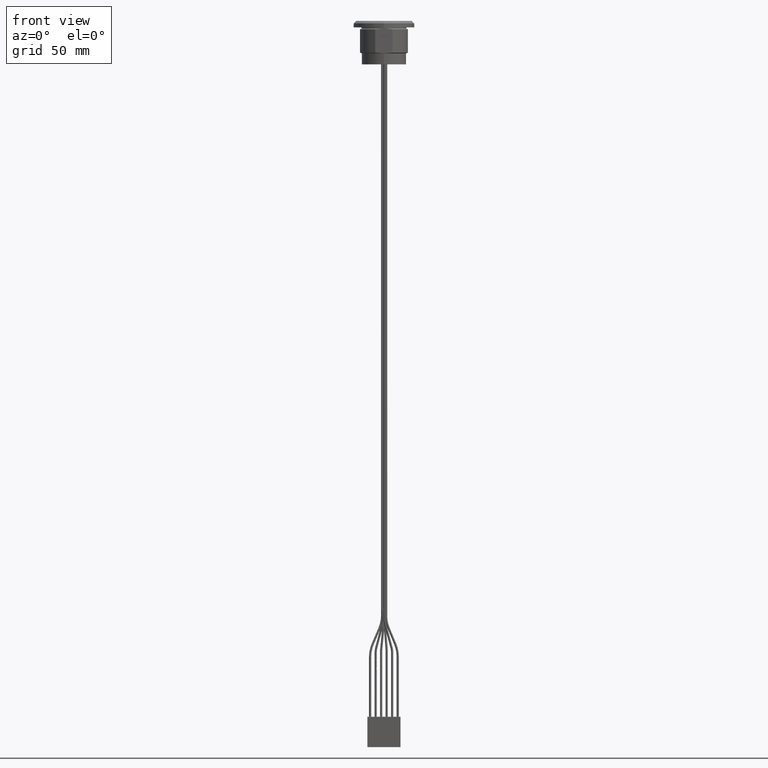
[diagram: clean part render]
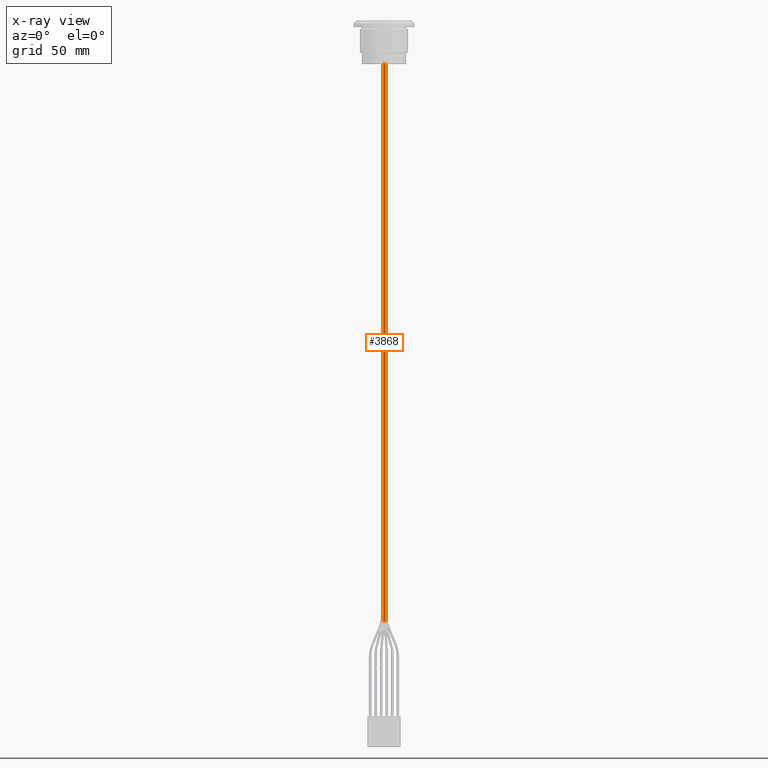
[diagram: x-ray — body ghosted, one internal face saturated and labeled with its STEP entity id]
A machine part, front view, then the same camera in x-ray: the body is ghosted and one INTERNAL B-rep face — a face not visible from any outside direction — is saturated and labeled: STEP entity #3868.
In plain terms, the highlighted cylindrical surface (bore or boss wall) has radius 0.5 mm, axis along (0, -0, -1).
Its self-contained STEP definition (entity closure, byte-faithful):
#288=FACE_OUTER_BOUND('',#505,.T.);
#505=EDGE_LOOP('',(#2818,#2819,#2820,#2821,#2822,#2823,#2824,#2825));
#718=CIRCLE('',#4087,0.5);
#719=CIRCLE('',#4088,0.5);
#757=CIRCLE('',#4145,0.5);
#758=CIRCLE('',#4146,0.5);
#879=LINE('',#6544,#1277);
#880=LINE('',#6545,#1278);
#1277=VECTOR('',#4629,0.5);
#1278=VECTOR('',#4630,10.);
#1671=VERTEX_POINT('',#5668);
#1672=VERTEX_POINT('',#5669);
#1699=VERTEX_POINT('',#6428);
#1715=VERTEX_POINT('',#6518);
#1716=VERTEX_POINT('',#6520);
#2054=EDGE_CURVE('',#1671,#1672,#718,.T.);
#2055=EDGE_CURVE('',#1672,#1671,#719,.T.);
#2127=EDGE_CURVE('',#1715,#1716,#757,.T.);
#2128=EDGE_CURVE('',#1716,#1715,#758,.T.);
#2139=EDGE_CURVE('',#1716,#1672,#879,.T.);
#2140=EDGE_CURVE('',#1671,#1699,#880,.T.);
#2818=ORIENTED_EDGE('',*,*,#2128,.F.);
#2819=ORIENTED_EDGE('',*,*,#2139,.T.);
#2820=ORIENTED_EDGE('',*,*,#2054,.F.);
#2821=ORIENTED_EDGE('',*,*,#2140,.T.);
#2822=ORIENTED_EDGE('',*,*,#2140,.F.);
#2823=ORIENTED_EDGE('',*,*,#2055,.F.);
#2824=ORIENTED_EDGE('',*,*,#2139,.F.);
#2825=ORIENTED_EDGE('',*,*,#2127,.F.);
#3800=CYLINDRICAL_SURFACE('',#4159,0.5);
#3868=ADVANCED_FACE('',(#288),#3800,.T.);
#4087=AXIS2_PLACEMENT_3D('',#5670,#4468,#4469);
#4088=AXIS2_PLACEMENT_3D('',#5671,#4470,#4471);
#4145=AXIS2_PLACEMENT_3D('',#6521,#4597,#4598);
#4146=AXIS2_PLACEMENT_3D('',#6522,#4599,#4600);
#4159=AXIS2_PLACEMENT_3D('',#6543,#4627,#4628);
#4468=DIRECTION('center_axis',(-1.47704537838551E-15,7.56610854500175E-16,
1.));
#4469=DIRECTION('ref_axis',(4.51736223297875E-15,-1.,7.56610854500181E-16));
#4470=DIRECTION('center_axis',(-1.47704537838551E-15,7.56610854500175E-16,
1.));
#4471=DIRECTION('ref_axis',(4.51736223297875E-15,-1.,7.56610854500181E-16));
#4597=DIRECTION('center_axis',(1.47704537838551E-15,-7.56610854500175E-16,
-1.));
#4598=DIRECTION('ref_axis',(-4.51736223297875E-15,1.,-7.56610854500181E-16));
#4599=DIRECTION('center_axis',(1.47704537838551E-15,-7.56610854500175E-16,
-1.));
#4600=DIRECTION('ref_axis',(-4.51736223297875E-15,1.,-7.56610854500181E-16));
#4627=DIRECTION('center_axis',(1.47704537838551E-15,-7.56610854500175E-16,
-1.));
#4628=DIRECTION('ref_axis',(-4.51736223297875E-15,1.,-7.56610854500181E-16));
#4629=DIRECTION('',(-1.47704537838551E-15,7.56610854500175E-16,1.));
#4630=DIRECTION('',(1.47704537838551E-15,-7.56610854500175E-16,-1.));
#5668=CARTESIAN_POINT('',(-3.12093721903829,5.44881468158242,-174.18814623477));
#5669=CARTESIAN_POINT('',(-2.96642872185082,5.42434293973,-174.18814623477));
#5670=CARTESIAN_POINT('Origin',(-2.96642872185082,5.92434293973,-174.18814623477));
#5671=CARTESIAN_POINT('Origin',(-2.96642872185082,5.92434293973,-174.18814623477));
#6428=CARTESIAN_POINT('',(-3.12093721903791,5.44881468158223,-430.197085184433));
#6518=CARTESIAN_POINT('',(-2.61104462285118,5.57262978646641,-430.426839723818));
#6520=CARTESIAN_POINT('',(-2.96642872185044,5.42434293972981,-430.426839723818));
#6521=CARTESIAN_POINT('Origin',(-2.96642872185044,5.92434293972981,-430.426839723818));
#6522=CARTESIAN_POINT('Origin',(-2.96642872185044,5.92434293972981,-430.426839723818));
#6543=CARTESIAN_POINT('Origin',(-2.96642872185045,5.92434293972981,-423.18814623477));
#6544=CARTESIAN_POINT('',(-2.96642872185045,5.42434293972981,-423.18814623477));
#6545=CARTESIAN_POINT('',(-3.12093721903829,5.44881468158242,-174.18814623477));